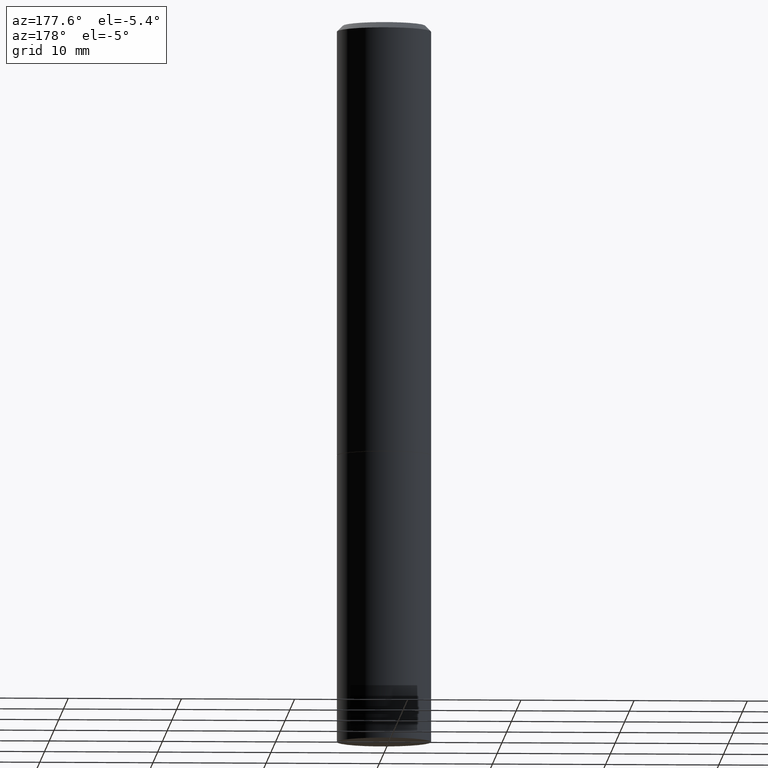
[diagram: clean part render]
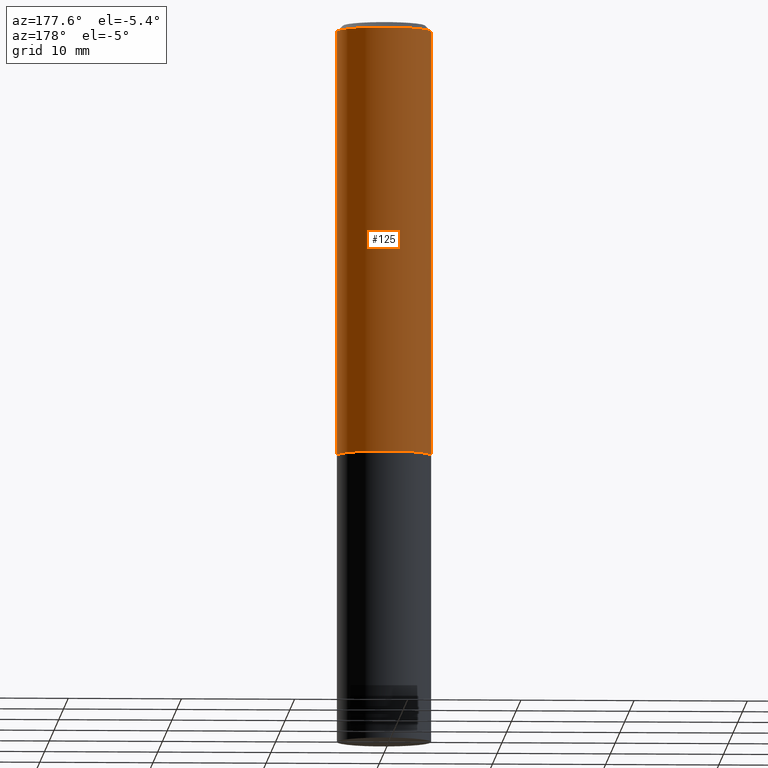
[diagram: same view with one face highlighted and labeled with its STEP entity id]
A machine part, auxiliary view. The second image highlights one B-rep face of the part: STEP entity #125.
In plain terms, the highlighted cylindrical surface (partial cylindrical patch) has radius 4.1669 mm, axis along (-0, 0, 1).
Its self-contained STEP definition (entity closure, byte-faithful):
#4 = CARTESIAN_POINT ( 'NONE',  ( -0.1640500000000000014, -1.486134718836924278E-15, -1.499000000000000110 ) ) ;
#17 = EDGE_CURVE ( 'NONE', #321, #318, #139, .T. ) ;
#22 = ORIENTED_EDGE ( 'NONE', *, *, #17, .F. ) ;
#23 = ORIENTED_EDGE ( 'NONE', *, *, #209, .F. ) ;
#25 = CYLINDRICAL_SURFACE ( 'NONE', #362, 0.1640499999999999181 ) ;
#30 = CARTESIAN_POINT ( 'NONE',  ( 0.1640499999999998626, -1.195294323311281667E-15, -0.02000000000000004552 ) ) ;
#50 = AXIS2_PLACEMENT_3D ( 'NONE', #273, #199, #301 ) ;
#60 = DIRECTION ( 'NONE',  ( -2.445468806185136877E-29, 3.491481338843145188E-15, 1.000000000000000000 ) ) ;
#66 = EDGE_LOOP ( 'NONE', ( #135, #140, #23, #22 ) ) ;
#92 = DIRECTION ( 'NONE',  ( 1.000000000000000000, -6.982962677686267499E-15, 4.876176775795935793E-29 ) ) ;
#93 = CARTESIAN_POINT ( 'NONE',  ( -0.1640499999999999181, 1.165645358014443773E-15, -8.069513015563169361E-30 ) ) ;
#115 = DIRECTION ( 'NONE',  ( -2.445468806185136877E-29, 3.491481338843145188E-15, 1.000000000000000000 ) ) ;
#125 = ADVANCED_FACE ( 'NONE', ( #239 ), #25, .T. ) ;
#135 = ORIENTED_EDGE ( 'NONE', *, *, #274, .T. ) ;
#139 = LINE ( 'NONE', #389, #248 ) ;
#140 = ORIENTED_EDGE ( 'NONE', *, *, #342, .T. ) ;
#144 = CARTESIAN_POINT ( 'NONE',  ( 0.1640500000000000014, -6.379285554200308410E-15, -1.499000000000000110 ) ) ;
#175 = CARTESIAN_POINT ( 'NONE',  ( 3.665757740471519853E-29, -5.233730526925875958E-15, -1.499000000000000110 ) ) ;
#182 = VECTOR ( 'NONE', #60, 39.37007874015748143 ) ;
#199 = DIRECTION ( 'NONE',  ( -2.445468806185136597E-29, 3.491481338843145583E-15, 1.000000000000000000 ) ) ;
#209 = EDGE_CURVE ( 'NONE', #318, #267, #218, .T. ) ;
#210 = DIRECTION ( 'NONE',  ( 1.000000000000000000, -6.982962677686270655E-15, 0.000000000000000000 ) ) ;
#218 = CIRCLE ( 'NONE', #50, 0.1640499999999998626 ) ;
#238 = CARTESIAN_POINT ( 'NONE',  ( -0.1640499999999998626, 1.075725400497567970E-15, -0.02000000000000004552 ) ) ;
#239 = FACE_OUTER_BOUND ( 'NONE', #66, .T. ) ;
#248 = VECTOR ( 'NONE', #115, 39.37007874015748143 ) ;
#267 = VERTEX_POINT ( 'NONE', #238 ) ;
#271 = LINE ( 'NONE', #93, #182 ) ;
#273 = CARTESIAN_POINT ( 'NONE',  ( 4.890937612370284544E-31, -6.982962677686307633E-17, -0.02000000000000004552 ) ) ;
#274 = EDGE_CURVE ( 'NONE', #321, #289, #365, .T. ) ;
#289 = VERTEX_POINT ( 'NONE', #4 ) ;
#301 = DIRECTION ( 'NONE',  ( 1.000000000000000000, -6.982962677686266711E-15, 0.000000000000000000 ) ) ;
#318 = VERTEX_POINT ( 'NONE', #30 ) ;
#321 = VERTEX_POINT ( 'NONE', #144 ) ;
#335 = CARTESIAN_POINT ( 'NONE',  ( 0.000000000000000000, 0.000000000000000000, 0.000000000000000000 ) ) ;
#342 = EDGE_CURVE ( 'NONE', #289, #267, #271, .T. ) ;
#359 = AXIS2_PLACEMENT_3D ( 'NONE', #175, #360, #210 ) ;
#360 = DIRECTION ( 'NONE',  ( -2.445468806185136597E-29, 3.491481338843145583E-15, 1.000000000000000000 ) ) ;
#362 = AXIS2_PLACEMENT_3D ( 'NONE', #335, #364, #92 ) ;
#364 = DIRECTION ( 'NONE',  ( -2.445468806185136597E-29, 3.491481338843145583E-15, 1.000000000000000000 ) ) ;
#365 = CIRCLE ( 'NONE', #359, 0.1640500000000000014 ) ;
#389 = CARTESIAN_POINT ( 'NONE',  ( 0.1640499999999999181, -1.145555027274431663E-15, 7.999368000693228739E-30 ) ) ;